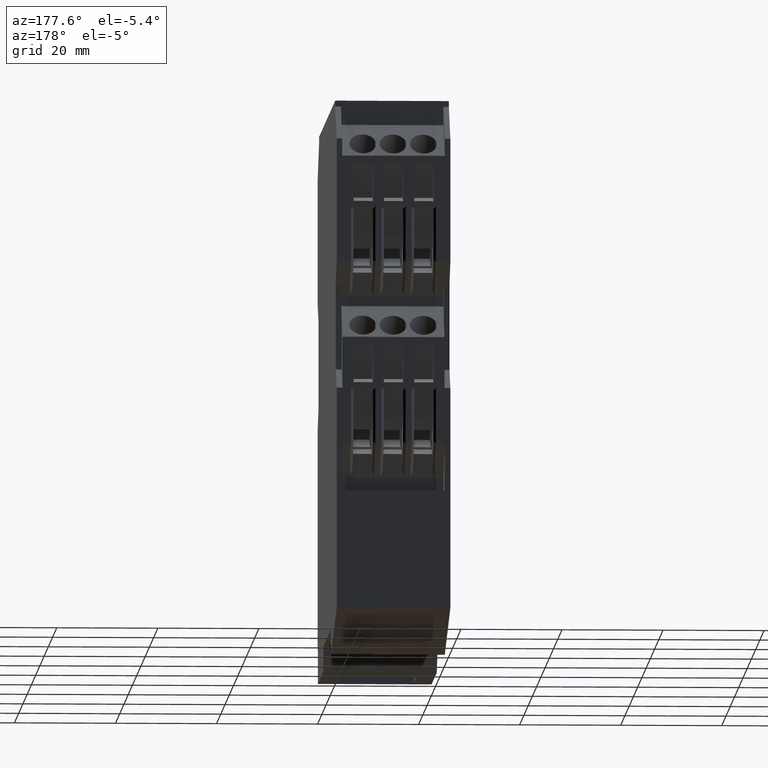
[diagram: clean part render]
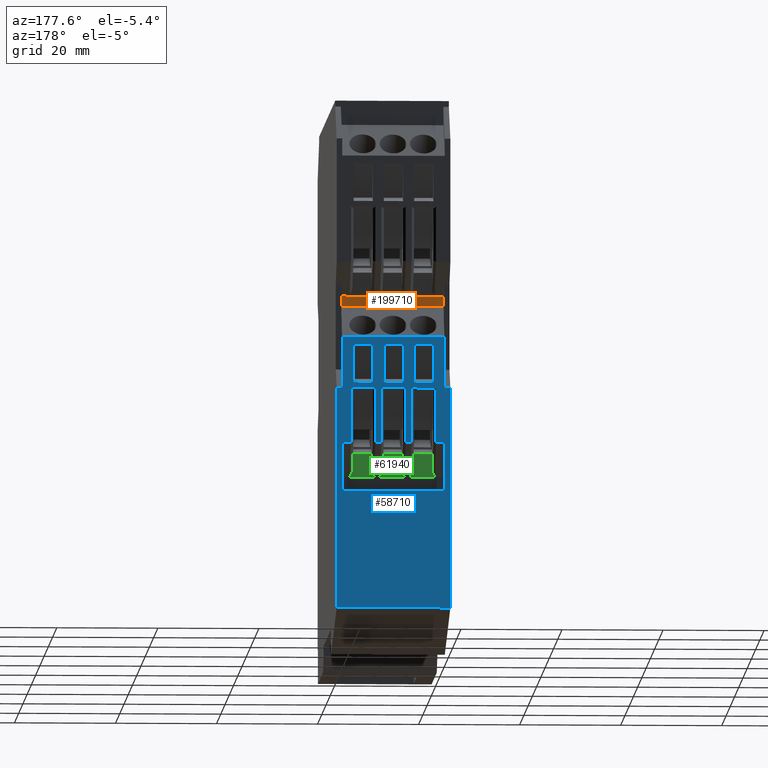
[diagram: same view with three faces highlighted in distinct colors, each labeled with its STEP entity id]
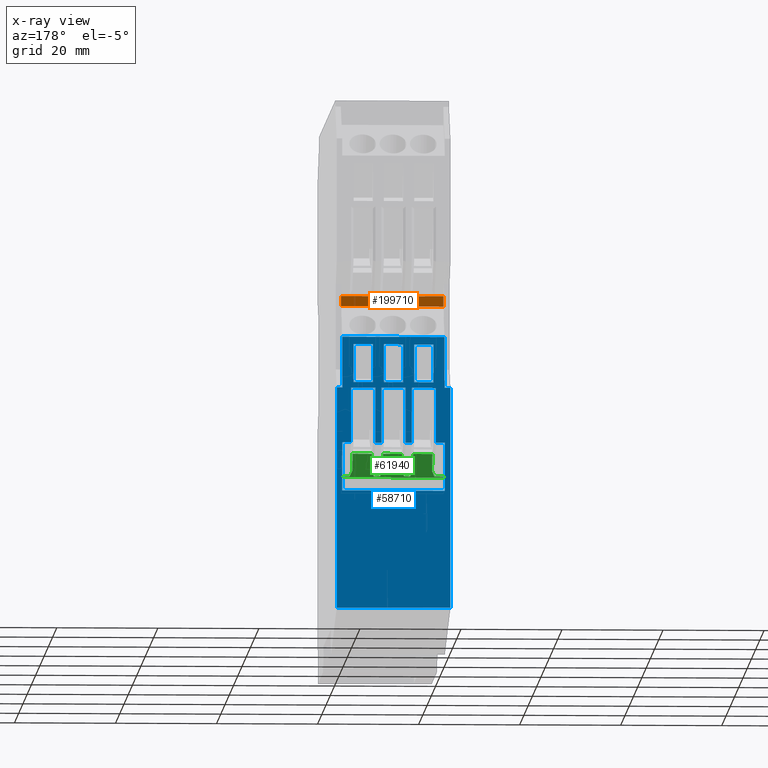
[diagram: x-ray of the same camera — body ghosted, the three highlighted faces saturated]
A machine part, auxiliary view with three faces highlighted in distinct colors.
The next image is the same camera in x-ray (body ghosted, the three faces saturated) — at least one of them is partly hidden behind the body in this view.
Their STEP definitions:

[orange] entity #199710 — the highlighted planar face has unit normal (0, -1, 0).
#41870=CARTESIAN_POINT('',(-10.0893993066638,34.848763946443,
122.824230008609));
#41880=VERTEX_POINT('',#41870);
#41910=CARTESIAN_POINT('',(-10.0893993066638,34.848763946443,0.));
#41920=DIRECTION('',(0.,0.,1.));
#41930=VECTOR('',#41920,1.);
#41940=LINE('',#41910,#41930);
#41950=CARTESIAN_POINT('',(-10.0893993066638,34.848763946443,
124.825714360528));
#41960=VERTEX_POINT('',#41950);
#41970=EDGE_CURVE('',#41880,#41960,#41940,.T.);
#83980=CARTESIAN_POINT('',(10.2106006933362,34.848763946443,
162.500000000001));
#83990=DIRECTION('',(0.,0.,1.));
#84000=VECTOR('',#83990,1.);
#84010=LINE('',#83980,#84000);
#84140=CARTESIAN_POINT('',(10.2106006933362,34.848763946443,
89.6029937768676));
#84150=DIRECTION('',(0.,-1.,0.));
#84160=DIRECTION('',(0.,0.,-1.));
#84170=AXIS2_PLACEMENT_3D('',#84140,#84150,#84160);
#84180=PLANE('',#84170);
#197630=CARTESIAN_POINT('',(10.2106006933362,34.848763946443,
122.824230008609));
#197640=VERTEX_POINT('',#197630);
#197670=CARTESIAN_POINT('',(0.,34.848763946443,122.824230008609));
#197680=DIRECTION('',(1.,0.,3.46944695195355E-18));
#197690=VECTOR('',#197680,1.);
#197700=LINE('',#197670,#197690);
#197710=EDGE_CURVE('',#41880,#197640,#197700,.T.);
#198420=CARTESIAN_POINT('',(0.,34.848763946443,124.825714360528));
#198430=DIRECTION('',(-1.,0.,0.));
#198440=VECTOR('',#198430,1.);
#198450=LINE('',#198420,#198440);
#198460=CARTESIAN_POINT('',(10.2106006933362,34.848763946443,
124.825714360528));
#198470=VERTEX_POINT('',#198460);
#198480=EDGE_CURVE('',#198470,#41960,#198450,.T.);
#199470=EDGE_CURVE('',#197640,#198470,#84010,.T.);
#199650=ORIENTED_EDGE('',*,*,#41970,.T.);
#199660=ORIENTED_EDGE('',*,*,#197710,.F.);
#199670=ORIENTED_EDGE('',*,*,#199470,.F.);
#199680=ORIENTED_EDGE('',*,*,#198480,.F.);
#199690=EDGE_LOOP('',(#199680,#199670,#199660,#199650));
#199700=FACE_OUTER_BOUND('',#199690,.T.);
#199710=ADVANCED_FACE('',(#199700),#84180,.F.);

[blue] entity #58710 — the highlighted planar face has unit normal (0, -1, 0).
#1480=CARTESIAN_POINT('',(-11.1893993066638,41.84876394652,
62.3072887580302));
#1490=VERTEX_POINT('',#1480);
#1520=CARTESIAN_POINT('',(-11.1893993066638,41.848763946524,
111.500000000001));
#1530=DIRECTION('',(0.,-3.54716256367738E-14,-1.));
#1540=VECTOR('',#1530,1.);
#1550=LINE('',#1520,#1540);
#1560=CARTESIAN_POINT('',(-11.1893993066638,41.8487639465216,
105.999999999998));
#1570=VERTEX_POINT('',#1560);
#1580=EDGE_CURVE('',#1570,#1490,#1550,.T.);
#55810=CARTESIAN_POINT('',(-11.1893993066638,41.84876394652,
62.3072887580302));
#55820=DIRECTION('',(0.,-1.,3.54716256367738E-14));
#55830=DIRECTION('',(0.,-3.54716256367738E-14,-1.));
#55840=AXIS2_PLACEMENT_3D('',#55810,#55820,#55830);
#55850=PLANE('',#55840);
#55860=CARTESIAN_POINT('',(1.96060069333618,41.8487639465213,0.));
#55870=DIRECTION('',(0.,3.54161144855425E-14,1.));
#55880=VECTOR('',#55870,1.);
#55890=LINE('',#55860,#55880);
#55900=CARTESIAN_POINT('',(1.96060069333618,41.8487639465251,
107.089162713876));
#55910=VERTEX_POINT('',#55900);
#55920=CARTESIAN_POINT('',(1.96060069333618,41.8487639465254,
114.607301309887));
#55930=VERTEX_POINT('',#55920);
#55940=EDGE_CURVE('',#55910,#55930,#55890,.T.);
#55950=ORIENTED_EDGE('',*,*,#55940,.T.);
#55960=CARTESIAN_POINT('',(0.,41.8487639465251,107.089162713876));
#55970=DIRECTION('',(-1.,1.78300435397055E-18,3.46944695195352E-18));
#55980=VECTOR('',#55970,1.);
#55990=LINE('',#55960,#55980);
#56000=CARTESIAN_POINT('',(-1.83939930666382,41.8487639465251,
107.089162713876));
#56010=VERTEX_POINT('',#56000);
#56020=EDGE_CURVE('',#55910,#56010,#55990,.T.);
#56030=ORIENTED_EDGE('',*,*,#56020,.F.);
#56040=CARTESIAN_POINT('',(-1.83939930666382,41.8487639465213,0.));
#56050=DIRECTION('',(0.,-3.54161144855425E-14,-1.));
#56060=VECTOR('',#56050,1.);
#56070=LINE('',#56040,#56060);
#56080=CARTESIAN_POINT('',(-1.83939930666382,41.8487639465254,
114.607301309887));
#56090=VERTEX_POINT('',#56080);
#56100=EDGE_CURVE('',#56090,#56010,#56070,.T.);
#56110=ORIENTED_EDGE('',*,*,#56100,.T.);
#56120=CARTESIAN_POINT('',(0.,41.8487639465254,114.607301309887));
#56130=DIRECTION('',(-1.,1.7830043539695E-18,-2.61895788750554E-17));
#56140=VECTOR('',#56130,1.);
#56150=LINE('',#56120,#56140);
#56160=EDGE_CURVE('',#55930,#56090,#56150,.T.);
#56170=ORIENTED_EDGE('',*,*,#56160,.T.);
#56180=EDGE_LOOP('',(#56170,#56110,#56030,#55950));
#56190=FACE_BOUND('',#56180,.T.);
#56200=CARTESIAN_POINT('',(0.,41.8487639465975,95.1094070233404));
#56210=DIRECTION('',(1.,-1.78300435397005E-18,3.46944695195384E-18));
#56220=VECTOR('',#56210,1.);
#56230=LINE('',#56200,#56220);
#56240=CARTESIAN_POINT('',(-10.0893993066638,41.8487639465212,
95.1094070232745));
#56250=VERTEX_POINT('',#56240);
#56260=CARTESIAN_POINT('',(-8.33939930666381,41.8487639465975,
95.1094070233404));
#56270=VERTEX_POINT('',#56260);
#56280=EDGE_CURVE('',#56250,#56270,#56230,.T.);
#56290=ORIENTED_EDGE('',*,*,#56280,.F.);
#56300=CARTESIAN_POINT('',(-8.33939930659106,41.8487639465213,0.));
#56310=DIRECTION('',(7.80625564189552E-16,3.54161144855425E-14,1.));
#56320=VECTOR('',#56310,1.);
#56330=LINE('',#56300,#56320);
#56340=CARTESIAN_POINT('',(-8.33939930659097,41.8487639465251,
105.992896055162));
#56350=VERTEX_POINT('',#56340);
#56360=EDGE_CURVE('',#56270,#56350,#56330,.T.);
#56370=ORIENTED_EDGE('',*,*,#56360,.F.);
#56380=CARTESIAN_POINT('',(0.,41.8487639465251,105.992896055111));
#56390=DIRECTION('',(-1.,1.78300435397055E-18,3.46944695195378E-18));
#56400=VECTOR('',#56390,1.);
#56410=LINE('',#56380,#56400);
#56420=CARTESIAN_POINT('',(-3.53939930673666,41.8487639465251,
105.992896055162));
#56430=VERTEX_POINT('',#56420);
#56440=EDGE_CURVE('',#56430,#56350,#56410,.T.);
#56450=ORIENTED_EDGE('',*,*,#56440,.T.);
#56460=CARTESIAN_POINT('',(-3.53939930673657,41.8487639465213,0.));
#56470=DIRECTION('',(7.73686670285644E-16,-3.54161144855425E-14,-1.));
#56480=VECTOR('',#56470,1.);
#56490=LINE('',#56460,#56480);
#56500=CARTESIAN_POINT('',(-3.53939930666381,41.8487639465975,
95.1094070233404));
#56510=VERTEX_POINT('',#56500);
#56520=EDGE_CURVE('',#56430,#56510,#56490,.T.);
#56530=ORIENTED_EDGE('',*,*,#56520,.F.);
#56540=CARTESIAN_POINT('',(-2.33939930661493,41.8487639465647,
95.1094070233108));
#56550=VERTEX_POINT('',#56540);
#56560=EDGE_CURVE('',#56510,#56550,#56230,.T.);
#56570=ORIENTED_EDGE('',*,*,#56560,.F.);
#56580=CARTESIAN_POINT('',(-2.33939930659106,41.8487639465213,0.));
#56590=DIRECTION('',(-7.80625564189554E-16,-3.54161144855425E-14,-1.));
#56600=VECTOR('',#56590,1.);
#56610=LINE('',#56580,#56600);
#56620=CARTESIAN_POINT('',(-2.33939930659097,41.8487639465251,
105.992896055162));
#56630=VERTEX_POINT('',#56620);
#56640=EDGE_CURVE('',#56630,#56550,#56610,.T.);
#56650=ORIENTED_EDGE('',*,*,#56640,.T.);
#56660=CARTESIAN_POINT('',(0.,41.8487639465251,105.992896055111));
#56670=DIRECTION('',(-1.,1.78300435397055E-18,3.46944695195378E-18));
#56680=VECTOR('',#56670,1.);
#56690=LINE('',#56660,#56680);
#56700=CARTESIAN_POINT('',(2.46060069333618,41.8487639465251,
105.992896055111));
#56710=VERTEX_POINT('',#56700);
#56720=EDGE_CURVE('',#56710,#56630,#56690,.T.);
#56730=ORIENTED_EDGE('',*,*,#56720,.T.);
#56740=CARTESIAN_POINT('',(2.46060069326343,41.8487639465213,0.));
#56750=DIRECTION('',(7.73686670285647E-16,-3.54161144855425E-14,-1.));
#56760=VECTOR('',#56750,1.);
#56770=LINE('',#56740,#56760);
#56780=CARTESIAN_POINT('',(2.46060069333618,41.8487639465247,
95.1094070232087));
#56790=VERTEX_POINT('',#56780);
#56800=EDGE_CURVE('',#56710,#56790,#56770,.T.);
#56810=ORIENTED_EDGE('',*,*,#56800,.F.);
#56820=CARTESIAN_POINT('',(0.,41.8487639465247,95.1094070232087));
#56830=DIRECTION('',(-1.,1.78300435397055E-18,3.46944695195383E-18));
#56840=VECTOR('',#56830,1.);
#56850=LINE('',#56820,#56840);
#56860=CARTESIAN_POINT('',(3.66060069333618,41.8487639465247,
95.1094070232087));
#56870=VERTEX_POINT('',#56860);
#56880=EDGE_CURVE('',#56870,#56790,#56850,.T.);
#56890=ORIENTED_EDGE('',*,*,#56880,.T.);
#56900=CARTESIAN_POINT('',(3.66060069340895,41.8487639465213,0.));
#56910=DIRECTION('',(-7.80625564189554E-16,-3.54161144855425E-14,-1.));
#56920=VECTOR('',#56910,1.);
#56930=LINE('',#56900,#56920);
#56940=CARTESIAN_POINT('',(3.66060069333618,41.8487639465251,
105.992896055111));
#56950=VERTEX_POINT('',#56940);
#56960=EDGE_CURVE('',#56950,#56870,#56930,.T.);
#56970=ORIENTED_EDGE('',*,*,#56960,.T.);
#56980=CARTESIAN_POINT('',(0.,41.8487639465251,105.992896055111));
#56990=DIRECTION('',(-1.,1.78300435397055E-18,3.46944695195378E-18));
#57000=VECTOR('',#56990,1.);
#57010=LINE('',#56980,#57000);
#57020=CARTESIAN_POINT('',(8.46060069333619,41.8487639465251,
105.992896055111));
#57030=VERTEX_POINT('',#57020);
#57040=EDGE_CURVE('',#57030,#56950,#57010,.T.);
#57050=ORIENTED_EDGE('',*,*,#57040,.T.);
#57060=CARTESIAN_POINT('',(8.46060069326342,41.8487639465213,0.));
#57070=DIRECTION('',(7.73686670285646E-16,-3.54161144855425E-14,-1.));
#57080=VECTOR('',#57070,1.);
#57090=LINE('',#57060,#57080);
#57100=CARTESIAN_POINT('',(8.46060069328731,41.8487639465647,
95.1094070233108));
#57110=VERTEX_POINT('',#57100);
#57120=EDGE_CURVE('',#57030,#57110,#57090,.T.);
#57130=ORIENTED_EDGE('',*,*,#57120,.F.);
#57140=CARTESIAN_POINT('',(0.121201386672368,41.8487639465247,
95.1094070232746));
#57150=DIRECTION('',(1.,-1.7830043539703E-18,3.46944695195361E-18));
#57160=VECTOR('',#57150,1.);
#57170=LINE('',#57140,#57160);
#57180=CARTESIAN_POINT('',(10.2106006933362,41.8487639465212,
95.1094070232714));
#57190=VERTEX_POINT('',#57180);
#57200=EDGE_CURVE('',#57110,#57190,#57170,.T.);
#57210=ORIENTED_EDGE('',*,*,#57200,.F.);
#57220=CARTESIAN_POINT('',(10.2106006933362,41.8487639465178,0.));
#57230=DIRECTION('',(0.,-3.54716256367738E-14,-1.));
#57240=VECTOR('',#57230,1.);
#57250=LINE('',#57220,#57240);
#57260=CARTESIAN_POINT('',(10.2106006933362,41.8487639465208,
85.5572887580313));
#57270=VERTEX_POINT('',#57260);
#57280=EDGE_CURVE('',#57190,#57270,#57250,.T.);
#57290=ORIENTED_EDGE('',*,*,#57280,.F.);
#57300=CARTESIAN_POINT('',(0.,41.8487639465208,85.5572887580313));
#57310=DIRECTION('',(1.,0.,0.));
#57320=VECTOR('',#57310,1.);
#57330=LINE('',#57300,#57320);
#57340=CARTESIAN_POINT('',(-10.0893993066638,41.8487639465208,
85.5572887580313));
#57350=VERTEX_POINT('',#57340);
#57360=EDGE_CURVE('',#57350,#57270,#57330,.T.);
#57370=ORIENTED_EDGE('',*,*,#57360,.T.);
#57380=CARTESIAN_POINT('',(-10.0893993066638,41.8487639465178,0.));
#57390=DIRECTION('',(0.,3.54716256367738E-14,1.));
#57400=VECTOR('',#57390,1.);
#57410=LINE('',#57380,#57400);
#57420=EDGE_CURVE('',#57350,#56250,#57410,.T.);
#57430=ORIENTED_EDGE('',*,*,#57420,.F.);
#57440=EDGE_LOOP('',(#57430,#57370,#57290,#57210,#57130,#57050,#56970,
#56890,#56810,#56730,#56650,#56570,#56530,#56450,#56370,#56290));
#57450=FACE_BOUND('',#57440,.T.);
#57460=CARTESIAN_POINT('',(-7.83939930666382,41.8487639465213,0.));
#57470=DIRECTION('',(0.,-3.54161144855425E-14,-1.));
#57480=VECTOR('',#57470,1.);
#57490=LINE('',#57460,#57480);
#57500=CARTESIAN_POINT('',(-7.83939930666382,41.8487639465254,
114.607301309887));
#57510=VERTEX_POINT('',#57500);
#57520=CARTESIAN_POINT('',(-7.83939930666382,41.8487639465251,
107.089162713876));
#57530=VERTEX_POINT('',#57520);
#57540=EDGE_CURVE('',#57510,#57530,#57490,.T.);
#57550=ORIENTED_EDGE('',*,*,#57540,.T.);
#57560=CARTESIAN_POINT('',(0.,41.8487639465254,114.607301309887));
#57570=DIRECTION('',(-1.,1.7830043539695E-18,-2.61895788750554E-17));
#57580=VECTOR('',#57570,1.);
#57590=LINE('',#57560,#57580);
#57600=CARTESIAN_POINT('',(-4.03939930666382,41.8487639465254,
114.607301309887));
#57610=VERTEX_POINT('',#57600);
#57620=EDGE_CURVE('',#57610,#57510,#57590,.T.);
#57630=ORIENTED_EDGE('',*,*,#57620,.T.);
#57640=CARTESIAN_POINT('',(-4.03939930666382,41.8487639465213,0.));
#57650=DIRECTION('',(0.,3.54161144855425E-14,1.));
#57660=VECTOR('',#57650,1.);
#57670=LINE('',#57640,#57660);
#57680=CARTESIAN_POINT('',(-4.03939930666382,41.8487639465251,
107.089162713876));
#57690=VERTEX_POINT('',#57680);
#57700=EDGE_CURVE('',#57690,#57610,#57670,.T.);
#57710=ORIENTED_EDGE('',*,*,#57700,.T.);
#57720=CARTESIAN_POINT('',(0.,41.8487639465251,107.089162713876));
#57730=DIRECTION('',(-1.,1.78300435397055E-18,3.46944695195352E-18));
#57740=VECTOR('',#57730,1.);
#57750=LINE('',#57720,#57740);
#57760=EDGE_CURVE('',#57690,#57530,#57750,.T.);
#57770=ORIENTED_EDGE('',*,*,#57760,.F.);
#57780=EDGE_LOOP('',(#57770,#57710,#57630,#57550));
#57790=FACE_BOUND('',#57780,.T.);
#57800=CARTESIAN_POINT('',(4.16060069333618,41.8487639465213,0.));
#57810=DIRECTION('',(0.,-3.54161144855425E-14,-1.));
#57820=VECTOR('',#57810,1.);
#57830=LINE('',#57800,#57820);
#57840=CARTESIAN_POINT('',(4.16060069333618,41.8487639465254,
114.607301309886));
#57850=VERTEX_POINT('',#57840);
#57860=CARTESIAN_POINT('',(4.16060069333618,41.8487639465251,
107.089162713876));
#57870=VERTEX_POINT('',#57860);
#57880=EDGE_CURVE('',#57850,#57870,#57830,.T.);
#57890=ORIENTED_EDGE('',*,*,#57880,.T.);
#57900=CARTESIAN_POINT('',(0.,41.8487639465254,114.607301309886));
#57910=DIRECTION('',(-1.,1.7830043539695E-18,-2.61895788750554E-17));
#57920=VECTOR('',#57910,1.);
#57930=LINE('',#57900,#57920);
#57940=CARTESIAN_POINT('',(7.96060069333618,41.8487639465254,
114.607301309886));
#57950=VERTEX_POINT('',#57940);
#57960=EDGE_CURVE('',#57950,#57850,#57930,.T.);
#57970=ORIENTED_EDGE('',*,*,#57960,.T.);
#57980=CARTESIAN_POINT('',(7.96060069333618,41.8487639465213,0.));
#57990=DIRECTION('',(0.,3.54161144855425E-14,1.));
#58000=VECTOR('',#57990,1.);
#58010=LINE('',#57980,#58000);
#58020=CARTESIAN_POINT('',(7.96060069333618,41.8487639465251,
107.089162713876));
#58030=VERTEX_POINT('',#58020);
#58040=EDGE_CURVE('',#58030,#57950,#58010,.T.);
#58050=ORIENTED_EDGE('',*,*,#58040,.T.);
#58060=CARTESIAN_POINT('',(0.,41.8487639465251,107.089162713876));
#58070=DIRECTION('',(-1.,1.78300435397055E-18,3.46944695195352E-18));
#58080=VECTOR('',#58070,1.);
#58090=LINE('',#58060,#58080);
#58100=EDGE_CURVE('',#58030,#57870,#58090,.T.);
#58110=ORIENTED_EDGE('',*,*,#58100,.F.);
#58120=EDGE_LOOP('',(#58110,#58050,#57970,#57890));
#58130=FACE_BOUND('',#58120,.T.);
#58140=CARTESIAN_POINT('',(0.,41.84876394652,62.3072887580303));
#58150=DIRECTION('',(1.,0.,0.));
#58160=VECTOR('',#58150,1.);
#58170=LINE('',#58140,#58160);
#58180=CARTESIAN_POINT('',(11.3106006933362,41.84876394652,
62.3072887580302));
#58190=VERTEX_POINT('',#58180);
#58200=EDGE_CURVE('',#1490,#58190,#58170,.T.);
#58210=ORIENTED_EDGE('',*,*,#58200,.F.);
#58220=CARTESIAN_POINT('',(11.3106006933362,41.8487639465178,0.));
#58230=DIRECTION('',(0.,3.54716256367738E-14,1.));
#58240=VECTOR('',#58230,1.);
#58250=LINE('',#58220,#58240);
#58260=CARTESIAN_POINT('',(11.3106006933362,41.8487639465232,
105.999999999998));
#58270=VERTEX_POINT('',#58260);
#58280=EDGE_CURVE('',#58190,#58270,#58250,.T.);
#58290=ORIENTED_EDGE('',*,*,#58280,.F.);
#58300=CARTESIAN_POINT('',(0.,41.8487639465251,105.999999999997));
#58310=DIRECTION('',(-1.,0.,0.));
#58320=VECTOR('',#58310,1.);
#58330=LINE('',#58300,#58320);
#58340=CARTESIAN_POINT('',(10.1606006933362,41.8487639465251,
105.999999999997));
#58350=VERTEX_POINT('',#58340);
#58360=EDGE_CURVE('',#58270,#58350,#58330,.T.);
#58370=ORIENTED_EDGE('',*,*,#58360,.F.);
#58380=CARTESIAN_POINT('',(10.1606006933362,41.8487639465213,
6.31698065353822E-14));
#58390=DIRECTION('',(3.46944695195361E-18,-3.54161144855425E-14,-1.));
#58400=VECTOR('',#58390,1.);
#58410=LINE('',#58380,#58400);
#58420=CARTESIAN_POINT('',(10.1606006933362,41.8487639465253,
116.097547264387));
#58430=VERTEX_POINT('',#58420);
#58440=EDGE_CURVE('',#58430,#58350,#58410,.T.);
#58450=ORIENTED_EDGE('',*,*,#58440,.T.);
#58460=CARTESIAN_POINT('',(0.121201386672368,41.8487639465254,
116.097547264387));
#58470=DIRECTION('',(1.,-1.7830043539703E-18,3.46944695195361E-18));
#58480=VECTOR('',#58470,1.);
#58490=LINE('',#58460,#58480);
#58500=CARTESIAN_POINT('',(-10.0393993066638,41.8487639465219,
116.09754726439));
#58510=VERTEX_POINT('',#58500);
#58520=EDGE_CURVE('',#58510,#58430,#58490,.T.);
#58530=ORIENTED_EDGE('',*,*,#58520,.T.);
#58540=CARTESIAN_POINT('',(-10.0393993066638,41.8487639465254,
114.476404896141));
#58550=DIRECTION('',(-3.46944695195355E-18,3.54161144855425E-14,1.));
#58560=VECTOR('',#58550,1.);
#58570=LINE('',#58540,#58560);
#58580=CARTESIAN_POINT('',(-10.0393993066638,41.8487639465216,
105.999999999997));
#58590=VERTEX_POINT('',#58580);
#58600=EDGE_CURVE('',#58590,#58510,#58570,.T.);
#58610=ORIENTED_EDGE('',*,*,#58600,.T.);
#58620=CARTESIAN_POINT('',(0.,41.8487639465251,105.999999999997));
#58630=DIRECTION('',(1.,0.,0.));
#58640=VECTOR('',#58630,1.);
#58650=LINE('',#58620,#58640);
#58660=EDGE_CURVE('',#1570,#58590,#58650,.T.);
#58670=ORIENTED_EDGE('',*,*,#58660,.T.);
#58680=ORIENTED_EDGE('',*,*,#1580,.F.);
#58690=EDGE_LOOP('',(#58680,#58670,#58610,#58530,#58450,#58370,#58290,
#58210));
#58700=FACE_OUTER_BOUND('',#58690,.T.);
#58710=ADVANCED_FACE('',(#56190,#57450,#57790,#58130,#58700),#55850,.F.)
;

[green] entity #61940 — the highlighted planar face has unit normal (-0, -0.9397, 0.342).
#59920=CARTESIAN_POINT('',(-10.0893993066638,35.0995725849285,
89.0070364660745));
#59930=VERTEX_POINT('',#59920);
#59960=CARTESIAN_POINT('',(0.,35.0995725850371,89.0070364661727));
#59970=DIRECTION('',(1.,2.75675947526141E-18,7.57413440914752E-18));
#59980=VECTOR('',#59970,1.);
#59990=LINE('',#59960,#59980);
#60000=CARTESIAN_POINT('',(-8.3393993066638,35.0995725850371,
89.0070364661727));
#60010=VERTEX_POINT('',#60000);
#60020=EDGE_CURVE('',#59930,#60010,#59990,.T.);
#60200=CARTESIAN_POINT('',(-10.0393993066638,35.0335767359449,
88.8257143612143));
#60210=DIRECTION('',(-2.86209677802311E-18,-0.939692620785897,
0.342020143325699));
#60220=DIRECTION('',(2.65039029426366E-18,-0.342020143325699,
-0.939692620785897));
#60230=AXIS2_PLACEMENT_3D('',#60200,#60210,#60220);
#60240=PLANE('',#60230);
#60250=CARTESIAN_POINT('',(52.7552268999925,2.70366067110053,0.));
#60260=DIRECTION('',(-0.423610037046828,0.309817118265942,
0.851215536596092));
#60270=VECTOR('',#60260,1.);
#60280=LINE('',#60250,#60270);
#60290=CARTESIAN_POINT('',(8.46060069333619,35.0995725850371,
89.0070364661727));
#60300=VERTEX_POINT('',#60290);
#60310=CARTESIAN_POINT('',(7.96060069333619,35.4652592911356,
90.0117524337729));
#60320=VERTEX_POINT('',#60310);
#60330=EDGE_CURVE('',#60300,#60320,#60280,.T.);
#60340=ORIENTED_EDGE('',*,*,#60330,.F.);
#60350=CARTESIAN_POINT('',(7.96060069333619,2.70366067110053,0.));
#60360=DIRECTION('',(0.,0.342020143325699,0.939692620785897));
#60370=VECTOR('',#60360,1.);
#60380=LINE('',#60350,#60370);
#60390=CARTESIAN_POINT('',(7.96060069333618,36.6758188983722,
93.3377376195592));
#60400=VERTEX_POINT('',#60390);
#60410=EDGE_CURVE('',#60320,#60400,#60380,.T.);
#60420=ORIENTED_EDGE('',*,*,#60410,.F.);
#60430=CARTESIAN_POINT('',(0.,36.6758188983722,93.3377376195592));
#60440=DIRECTION('',(-1.,1.34035048051937E-18,3.68258267938175E-18));
#60450=VECTOR('',#60440,1.);
#60460=LINE('',#60430,#60450);
#60470=CARTESIAN_POINT('',(4.16060069333618,36.6758188983722,
93.3377376195592));
#60480=VERTEX_POINT('',#60470);
#60490=EDGE_CURVE('',#60400,#60480,#60460,.T.);
#60500=ORIENTED_EDGE('',*,*,#60490,.F.);
#60510=CARTESIAN_POINT('',(4.16060069333618,2.70366067110053,0.));
#60520=DIRECTION('',(0.,0.342020143325699,0.939692620785897));
#60530=VECTOR('',#60520,1.);
#60540=LINE('',#60510,#60530);
#60550=CARTESIAN_POINT('',(4.16060069333618,35.4652592911359,
90.0117524337738));
#60560=VERTEX_POINT('',#60550);
#60570=EDGE_CURVE('',#60560,#60480,#60540,.T.);
#60580=ORIENTED_EDGE('',*,*,#60570,.T.);
#60590=CARTESIAN_POINT('',(-40.63402551332,2.70366067110053,0.));
#60600=DIRECTION('',(0.423610037046828,0.309817118265942,
0.851215536596092));
#60610=VECTOR('',#60600,1.);
#60620=LINE('',#60590,#60610);
#60630=CARTESIAN_POINT('',(3.66060069328654,35.099572584965,
89.0070364659747));
#60640=VERTEX_POINT('',#60630);
#60650=EDGE_CURVE('',#60640,#60560,#60620,.T.);
#60660=ORIENTED_EDGE('',*,*,#60650,.T.);
#60670=CARTESIAN_POINT('',(0.,35.0995725850371,89.0070364661727));
#60680=DIRECTION('',(1.,2.75675947526141E-18,7.57413440914752E-18));
#60690=VECTOR('',#60680,1.);
#60700=LINE('',#60670,#60690);
#60710=CARTESIAN_POINT('',(2.46060069333618,35.0995725850371,
89.0070364661727));
#60720=VERTEX_POINT('',#60710);
#60730=EDGE_CURVE('',#60720,#60640,#60700,.T.);
#60740=ORIENTED_EDGE('',*,*,#60730,.T.);
#60750=CARTESIAN_POINT('',(46.7552268999924,2.70366067110053,0.));
#60760=DIRECTION('',(-0.423610037046828,0.309817118265942,
0.851215536596092));
#60770=VECTOR('',#60760,1.);
#60780=LINE('',#60750,#60770);
#60790=CARTESIAN_POINT('',(1.96060069333618,35.4652592911357,
90.0117524337733));
#60800=VERTEX_POINT('',#60790);
#60810=EDGE_CURVE('',#60720,#60800,#60780,.T.);
#60820=ORIENTED_EDGE('',*,*,#60810,.F.);
#60830=CARTESIAN_POINT('',(1.96060069333618,2.70366067110053,0.));
#60840=DIRECTION('',(0.,0.342020143325699,0.939692620785897));
#60850=VECTOR('',#60840,1.);
#60860=LINE('',#60830,#60850);
#60870=CARTESIAN_POINT('',(1.96060069333618,36.6758188983722,
93.3377376195592));
#60880=VERTEX_POINT('',#60870);
#60890=EDGE_CURVE('',#60800,#60880,#60860,.T.);
#60900=ORIENTED_EDGE('',*,*,#60890,.F.);
#60910=CARTESIAN_POINT('',(0.,36.6758188983722,93.3377376195592));
#60920=DIRECTION('',(-1.,1.34035048051937E-18,3.68258267938175E-18));
#60930=VECTOR('',#60920,1.);
#60940=LINE('',#60910,#60930);
#60950=CARTESIAN_POINT('',(-1.83939930666382,36.6758188983722,
93.3377376195592));
#60960=VERTEX_POINT('',#60950);
#60970=EDGE_CURVE('',#60880,#60960,#60940,.T.);
#60980=ORIENTED_EDGE('',*,*,#60970,.F.);
#60990=CARTESIAN_POINT('',(-1.83939930666382,2.70366067110053,0.));
#61000=DIRECTION('',(0.,0.342020143325699,0.939692620785897));
#61010=VECTOR('',#61000,1.);
#61020=LINE('',#60990,#61010);
#61030=CARTESIAN_POINT('',(-1.83939930666382,35.4652592911359,
90.0117524337739));
#61040=VERTEX_POINT('',#61030);
#61050=EDGE_CURVE('',#61040,#60960,#61020,.T.);
#61060=ORIENTED_EDGE('',*,*,#61050,.T.);
#61070=CARTESIAN_POINT('',(-46.63402551332,2.70366067110053,0.));
#61080=DIRECTION('',(0.423610037046828,0.309817118265942,
0.851215536596092));
#61090=VECTOR('',#61080,1.);
#61100=LINE('',#61070,#61090);
#61110=CARTESIAN_POINT('',(-2.33939930661494,35.0995725850371,
89.0070364661727));
#61120=VERTEX_POINT('',#61110);
#61130=EDGE_CURVE('',#61120,#61040,#61100,.T.);
#61140=ORIENTED_EDGE('',*,*,#61130,.T.);
#61150=CARTESIAN_POINT('',(0.,35.0995725850371,89.0070364661727));
#61160=DIRECTION('',(1.,2.75675947526141E-18,7.57413440914752E-18));
#61170=VECTOR('',#61160,1.);
#61180=LINE('',#61150,#61170);
#61190=CARTESIAN_POINT('',(-3.53939930666382,35.0995725850371,
89.0070364661727));
#61200=VERTEX_POINT('',#61190);
#61210=EDGE_CURVE('',#61200,#61120,#61180,.T.);
#61220=ORIENTED_EDGE('',*,*,#61210,.T.);
#61230=CARTESIAN_POINT('',(40.7552268999924,2.70366067110053,0.));
#61240=DIRECTION('',(-0.423610037046828,0.309817118265942,
0.851215536596092));
#61250=VECTOR('',#61240,1.);
#61260=LINE('',#61230,#61250);
#61270=CARTESIAN_POINT('',(-4.03939930666382,35.4652592911357,
90.0117524337731));
#61280=VERTEX_POINT('',#61270);
#61290=EDGE_CURVE('',#61200,#61280,#61260,.T.);
#61300=ORIENTED_EDGE('',*,*,#61290,.F.);
#61310=CARTESIAN_POINT('',(-4.03939930666382,2.70366067110053,0.));
#61320=DIRECTION('',(0.,0.342020143325699,0.939692620785897));
#61330=VECTOR('',#61320,1.);
#61340=LINE('',#61310,#61330);
#61350=CARTESIAN_POINT('',(-4.03939930666382,36.6758188983722,
93.3377376195592));
#61360=VERTEX_POINT('',#61350);
#61370=EDGE_CURVE('',#61280,#61360,#61340,.T.);
#61380=ORIENTED_EDGE('',*,*,#61370,.F.);
#61390=CARTESIAN_POINT('',(0.,36.6758188983722,93.3377376195592));
#61400=DIRECTION('',(-1.,1.34035048051937E-18,3.68258267938175E-18));
#61410=VECTOR('',#61400,1.);
#61420=LINE('',#61390,#61410);
#61430=CARTESIAN_POINT('',(-7.83939930666382,36.6758188983723,
93.3377376195592));
#61440=VERTEX_POINT('',#61430);
#61450=EDGE_CURVE('',#61360,#61440,#61420,.T.);
#61460=ORIENTED_EDGE('',*,*,#61450,.F.);
#61470=CARTESIAN_POINT('',(-7.83939930666382,2.70366067110053,0.));
#61480=DIRECTION('',(0.,-0.342020143325699,-0.939692620785897));
#61490=VECTOR('',#61480,1.);
#61500=LINE('',#61470,#61490);
#61510=CARTESIAN_POINT('',(-7.83939930666382,35.4652592911354,
90.0117524337724));
#61520=VERTEX_POINT('',#61510);
#61530=EDGE_CURVE('',#61440,#61520,#61500,.T.);
#61540=ORIENTED_EDGE('',*,*,#61530,.F.);
#61550=CARTESIAN_POINT('',(-52.63402551332,2.70366067110053,0.));
#61560=DIRECTION('',(-0.423610037046828,-0.309817118265942,
-0.851215536596092));
#61570=VECTOR('',#61560,1.);
#61580=LINE('',#61550,#61570);
#61590=EDGE_CURVE('',#61520,#60010,#61580,.T.);
#61600=ORIENTED_EDGE('',*,*,#61590,.F.);
#61610=ORIENTED_EDGE('',*,*,#60020,.T.);
#61620=CARTESIAN_POINT('',(-10.0893993066638,2.70366067110053,0.));
#61630=DIRECTION('',(0.,-0.342020143325699,-0.939692620785897));
#61640=VECTOR('',#61630,1.);
#61650=LINE('',#61620,#61640);
#61660=CARTESIAN_POINT('',(-10.0893993066638,35.0335767359449,
88.8257143612143));
#61670=VERTEX_POINT('',#61660);
#61680=EDGE_CURVE('',#59930,#61670,#61650,.T.);
#61690=ORIENTED_EDGE('',*,*,#61680,.F.);
#61700=CARTESIAN_POINT('',(0.,35.0335767360177,88.8257143612143));
#61710=DIRECTION('',(-1.,0.,0.));
#61720=VECTOR('',#61710,1.);
#61730=LINE('',#61700,#61720);
#61740=CARTESIAN_POINT('',(10.2106006933362,35.0335767360177,
88.8257143612143));
#61750=VERTEX_POINT('',#61740);
#61760=EDGE_CURVE('',#61750,#61670,#61730,.T.);
#61770=ORIENTED_EDGE('',*,*,#61760,.T.);
#61780=CARTESIAN_POINT('',(10.2106006933362,2.70366067110053,0.));
#61790=DIRECTION('',(0.,-0.342020143325699,-0.939692620785897));
#61800=VECTOR('',#61790,1.);
#61810=LINE('',#61780,#61800);
#61820=CARTESIAN_POINT('',(10.2106006933362,35.0995725849285,
89.0070364660746));
#61830=VERTEX_POINT('',#61820);
#61840=EDGE_CURVE('',#61830,#61750,#61810,.T.);
#61850=ORIENTED_EDGE('',*,*,#61840,.T.);
#61860=CARTESIAN_POINT('',(0.,35.0995725850371,89.0070364661727));
#61870=DIRECTION('',(1.,2.75675947526141E-18,7.57413440914752E-18));
#61880=VECTOR('',#61870,1.);
#61890=LINE('',#61860,#61880);
#61900=EDGE_CURVE('',#60300,#61830,#61890,.T.);
#61910=ORIENTED_EDGE('',*,*,#61900,.T.);
#61920=EDGE_LOOP('',(#61910,#61850,#61770,#61690,#61610,#61600,#61540,
#61460,#61380,#61300,#61220,#61140,#61060,#60980,#60900,#60820,#60740,
#60660,#60580,#60500,#60420,#60340));
#61930=FACE_OUTER_BOUND('',#61920,.T.);
#61940=ADVANCED_FACE('',(#61930),#60240,.F.);